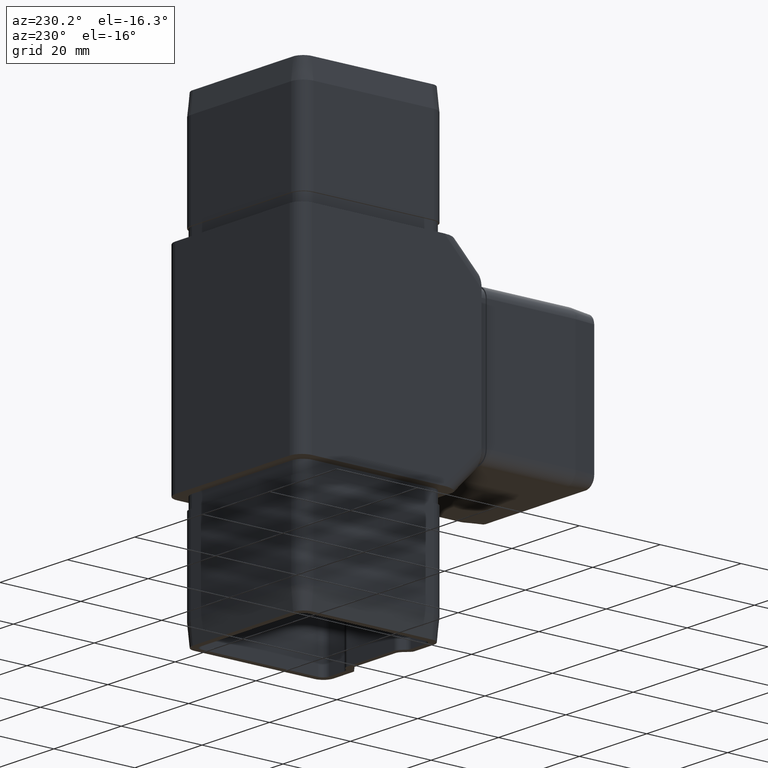
[diagram: clean part render]
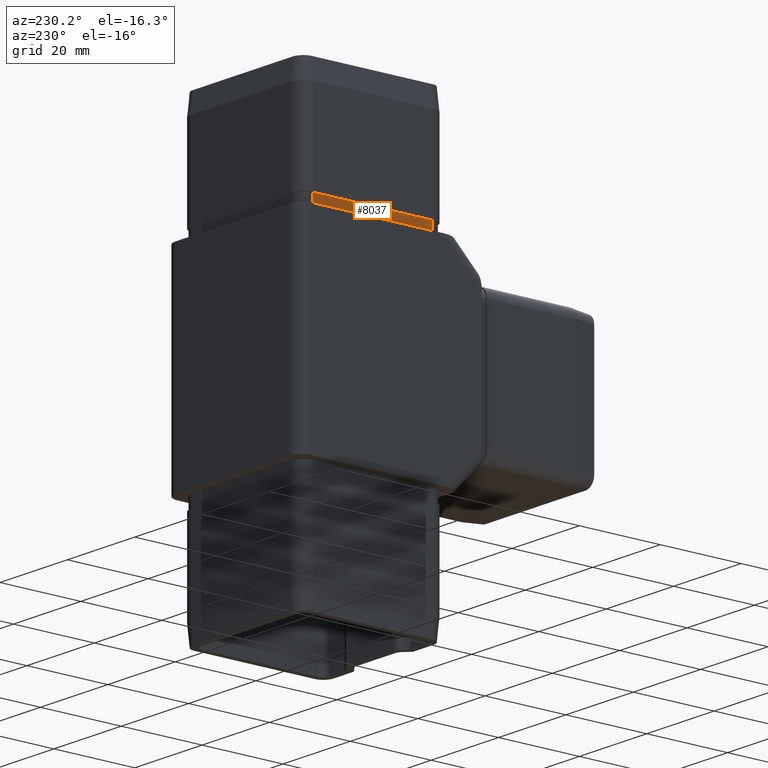
[diagram: same view with one face highlighted and labeled with its STEP entity id]
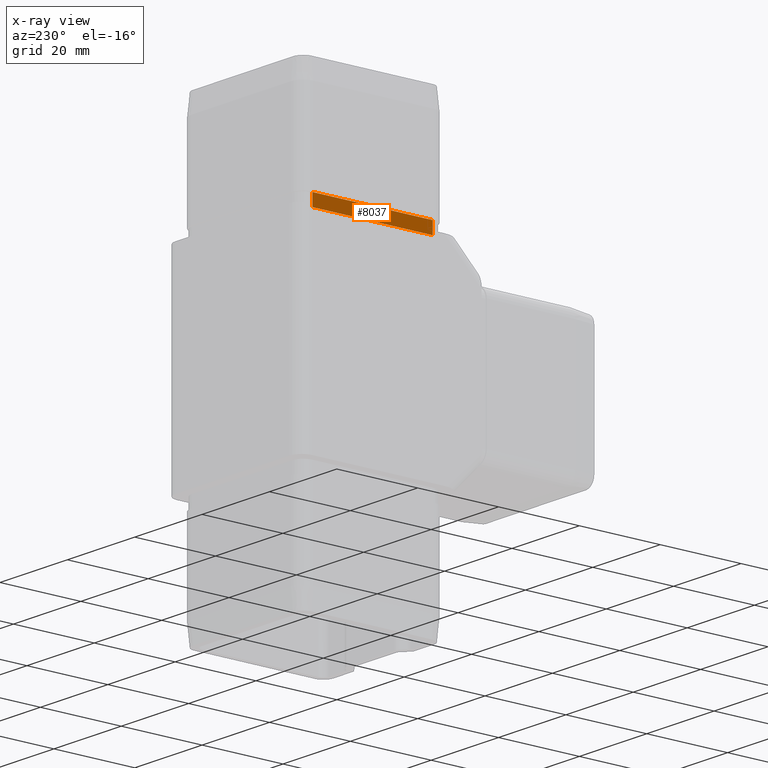
[diagram: x-ray of the same camera — body ghosted, the highlighted face saturated]
A machine part, auxiliary view. The second image highlights one B-rep face of the part: STEP entity #8037.
The next image is the same camera in x-ray: the body ghosted, the highlighted face saturated — about 0% of this face is hidden behind the body in this view.
In plain terms, the highlighted planar face has unit normal (1, -0, 0).
Its self-contained STEP definition (entity closure, byte-faithful):
#555 = CARTESIAN_POINT ( 'NONE',  ( -17.59999999999999800, -12.40000000000000000, 28.00000000000000000 ) ) ;
#1488 = EDGE_CURVE ( 'NONE', #4473, #14236, #5350, .T. ) ;
#2182 = DIRECTION ( 'NONE',  ( 0.0000000000000000000, 1.000000000000000000, 0.0000000000000000000 ) ) ;
#3393 = VERTEX_POINT ( 'NONE', #10429 ) ;
#3882 = DIRECTION ( 'NONE',  ( 0.0000000000000000000, 1.000000000000000000, 0.0000000000000000000 ) ) ;
#4473 = VERTEX_POINT ( 'NONE', #9465 ) ;
#4799 = DIRECTION ( 'NONE',  ( 0.0000000000000000000, 0.0000000000000000000, -1.000000000000000000 ) ) ;
#5044 = ORIENTED_EDGE ( 'NONE', *, *, #7189, .T. ) ;
#5350 = LINE ( 'NONE', #10851, #9845 ) ;
#5685 = VERTEX_POINT ( 'NONE', #12427 ) ;
#5789 = VECTOR ( 'NONE', #13633, 1000.000000000000000 ) ;
#5947 = ORIENTED_EDGE ( 'NONE', *, *, #1488, .T. ) ;
#6045 = AXIS2_PLACEMENT_3D ( 'NONE', #17483, #14205, #4799 ) ;
#6190 = EDGE_LOOP ( 'NONE', ( #20356, #5044, #5947, #16677 ) ) ;
#6344 = PLANE ( 'NONE',  #6045 ) ;
#6757 = VECTOR ( 'NONE', #3882, 1000.000000000000000 ) ;
#7189 = EDGE_CURVE ( 'NONE', #5685, #4473, #10548, .T. ) ;
#8037 = ADVANCED_FACE ( 'NONE', ( #18926 ), #6344, .F. ) ;
#9465 = CARTESIAN_POINT ( 'NONE',  ( -17.59999999999999800, 17.39999999999999900, 28.00000000000000000 ) ) ;
#9845 = VECTOR ( 'NONE', #17834, 1000.000000000000000 ) ;
#10429 = CARTESIAN_POINT ( 'NONE',  ( -17.59999999999999800, -12.40000000000000000, 25.00000000000000000 ) ) ;
#10548 = LINE ( 'NONE', #555, #17262 ) ;
#10827 = EDGE_CURVE ( 'NONE', #5685, #3393, #15498, .T. ) ;
#10851 = CARTESIAN_POINT ( 'NONE',  ( -17.59999999999999800, 17.39999999999999900, 28.00000000000000000 ) ) ;
#11028 = CARTESIAN_POINT ( 'NONE',  ( -17.59999999999999800, 17.39999999999999900, 25.00000000000000000 ) ) ;
#11716 = LINE ( 'NONE', #18315, #6757 ) ;
#12427 = CARTESIAN_POINT ( 'NONE',  ( -17.59999999999999800, -12.40000000000000000, 28.00000000000000000 ) ) ;
#13633 = DIRECTION ( 'NONE',  ( 0.0000000000000000000, -0.0000000000000000000, -1.000000000000000000 ) ) ;
#14205 = DIRECTION ( 'NONE',  ( 1.000000000000000000, -0.0000000000000000000, 0.0000000000000000000 ) ) ;
#14236 = VERTEX_POINT ( 'NONE', #11028 ) ;
#15498 = LINE ( 'NONE', #19939, #5789 ) ;
#16677 = ORIENTED_EDGE ( 'NONE', *, *, #20533, .F. ) ;
#17262 = VECTOR ( 'NONE', #2182, 1000.000000000000000 ) ;
#17483 = CARTESIAN_POINT ( 'NONE',  ( -17.59999999999999800, -12.40000000000000000, 28.00000000000000000 ) ) ;
#17834 = DIRECTION ( 'NONE',  ( 0.0000000000000000000, -0.0000000000000000000, -1.000000000000000000 ) ) ;
#18315 = CARTESIAN_POINT ( 'NONE',  ( -17.59999999999999800, -12.40000000000000000, 25.00000000000000000 ) ) ;
#18926 = FACE_OUTER_BOUND ( 'NONE', #6190, .T. ) ;
#19939 = CARTESIAN_POINT ( 'NONE',  ( -17.59999999999999800, -12.40000000000000000, 28.00000000000000000 ) ) ;
#20356 = ORIENTED_EDGE ( 'NONE', *, *, #10827, .F. ) ;
#20533 = EDGE_CURVE ( 'NONE', #3393, #14236, #11716, .T. ) ;